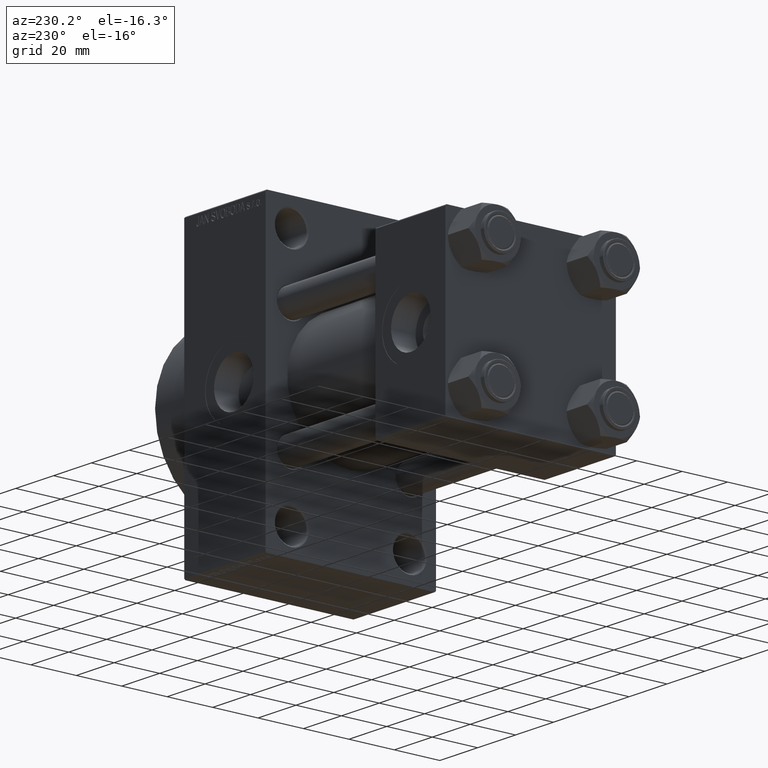
[diagram: clean part render]
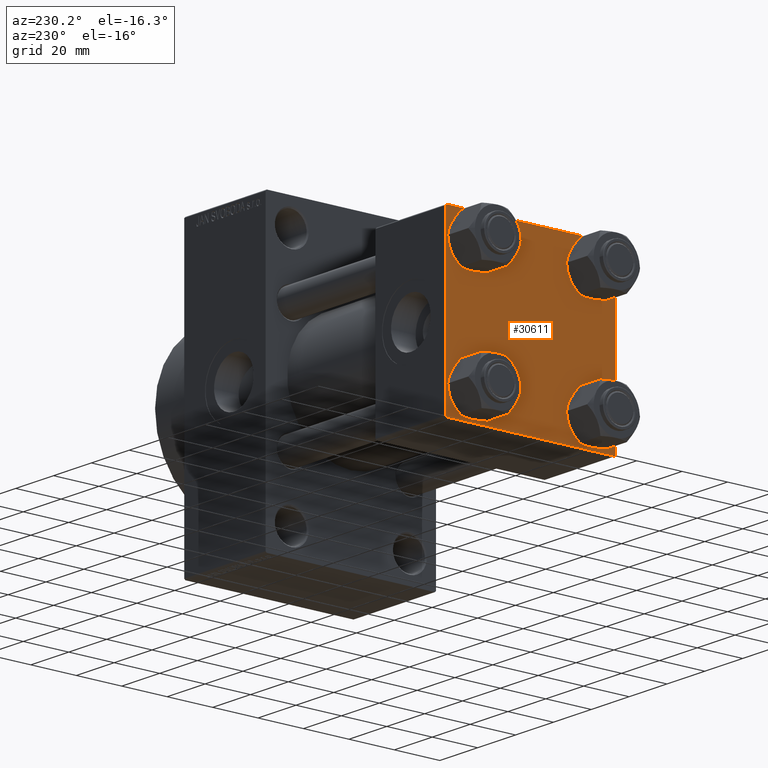
[diagram: same view with one face highlighted and labeled with its STEP entity id]
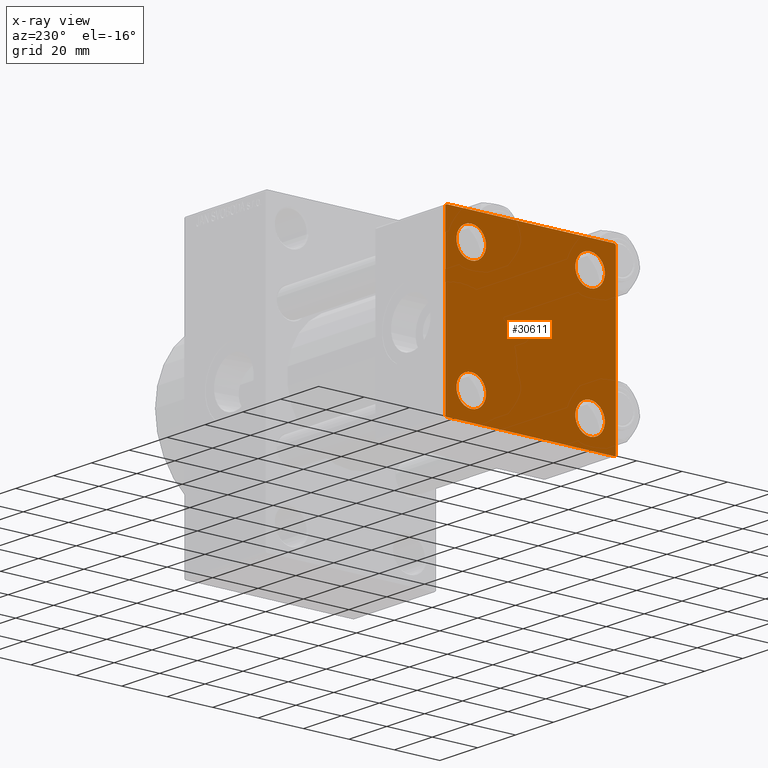
[diagram: x-ray of the same camera — body ghosted, the highlighted face saturated]
A machine part, auxiliary view. The second image highlights one B-rep face of the part: STEP entity #30611.
The next image is the same camera in x-ray: the body ghosted, the highlighted face saturated — about 0% of this face is hidden behind the body in this view.
In plain terms, the highlighted planar face has unit normal (-1, 0, 0).
Its self-contained STEP definition (entity closure, byte-faithful):
#164 = ORIENTED_EDGE ( 'NONE', *, *, #23043, .F. ) ;
#266 = CARTESIAN_POINT ( 'NONE',  ( 0.000000000000000000, 0.000000000000000000, 0.000000000000000000 ) ) ;
#280 = VERTEX_POINT ( 'NONE', #4745 ) ;
#380 = CIRCLE ( 'NONE', #32928, 6.500000000000015987 ) ;
#445 = EDGE_CURVE ( 'NONE', #45402, #32034, #45123, .T. ) ;
#651 = EDGE_CURVE ( 'NONE', #19313, #18272, #25480, .T. ) ;
#718 = CARTESIAN_POINT ( 'NONE',  ( 0.000000000000000000, -37.24999999999975842, -37.25000000000027001 ) ) ;
#1089 = AXIS2_PLACEMENT_3D ( 'NONE', #13650, #21584, #28790 ) ;
#1603 = EDGE_LOOP ( 'NONE', ( #14494, #9379 ) ) ;
#2629 = ORIENTED_EDGE ( 'NONE', *, *, #27006, .T. ) ;
#2839 = CARTESIAN_POINT ( 'NONE',  ( 0.000000000000000000, 26.14999999999999858, 32.65000000000002700 ) ) ;
#3010 = VERTEX_POINT ( 'NONE', #30401 ) ;
#4671 = LINE ( 'NONE', #31243, #33679 ) ;
#4745 = CARTESIAN_POINT ( 'NONE',  ( 0.000000000000000000, -26.14999999999999147, -19.64999999999999503 ) ) ;
#4806 = ORIENTED_EDGE ( 'NONE', *, *, #18649, .F. ) ;
#5316 = EDGE_LOOP ( 'NONE', ( #17723, #12938 ) ) ;
#5502 = CARTESIAN_POINT ( 'NONE',  ( 0.000000000000000000, 36.99999999999997868, -37.50000000000000000 ) ) ;
#6430 = DIRECTION ( 'NONE',  ( -0.000000000000000000, 0.000000000000000000, 1.000000000000000000 ) ) ;
#6792 = VECTOR ( 'NONE', #23346, 1000.000000000000000 ) ;
#7272 = LINE ( 'NONE', #29633, #43331 ) ;
#7465 = CARTESIAN_POINT ( 'NONE',  ( 0.000000000000000000, 26.14999999999999858, -26.15000000000000213 ) ) ;
#7577 = VERTEX_POINT ( 'NONE', #22704 ) ;
#9268 = VERTEX_POINT ( 'NONE', #33049 ) ;
#9379 = ORIENTED_EDGE ( 'NONE', *, *, #13711, .T. ) ;
#9625 = ORIENTED_EDGE ( 'NONE', *, *, #651, .T. ) ;
#9881 = CIRCLE ( 'NONE', #39245, 6.500000000000015987 ) ;
#10325 = VERTEX_POINT ( 'NONE', #30315 ) ;
#10361 = DIRECTION ( 'NONE',  ( 0.000000000000000000, 0.000000000000000000, -1.000000000000000000 ) ) ;
#10403 = AXIS2_PLACEMENT_3D ( 'NONE', #33815, #22408, #31093 ) ;
#10669 = CIRCLE ( 'NONE', #15426, 6.500000000000023093 ) ;
#10781 = DIRECTION ( 'NONE',  ( 0.000000000000000000, 0.000000000000000000, 1.000000000000000000 ) ) ;
#11255 = DIRECTION ( 'NONE',  ( -0.000000000000000000, -0.7071067811865474617, -0.7071067811865474617 ) ) ;
#11263 = CIRCLE ( 'NONE', #19191, 6.500000000000023093 ) ;
#11276 = DIRECTION ( 'NONE',  ( 1.000000000000000000, -0.000000000000000000, 0.000000000000000000 ) ) ;
#11481 = FACE_BOUND ( 'NONE', #1603, .T. ) ;
#11683 = VECTOR ( 'NONE', #10361, 1000.000000000000000 ) ;
#11962 = DIRECTION ( 'NONE',  ( -0.000000000000000000, 0.7071067811865474617, 0.7071067811865474617 ) ) ;
#12335 = VECTOR ( 'NONE', #38794, 1000.000000000000000 ) ;
#12924 = EDGE_CURVE ( 'NONE', #3010, #36391, #15658, .T. ) ;
#12938 = ORIENTED_EDGE ( 'NONE', *, *, #19179, .T. ) ;
#13233 = AXIS2_PLACEMENT_3D ( 'NONE', #44306, #44786, #10781 ) ;
#13594 = VERTEX_POINT ( 'NONE', #42335 ) ;
#13650 = CARTESIAN_POINT ( 'NONE',  ( 0.000000000000000000, -26.14999999999999147, -26.15000000000000924 ) ) ;
#13711 = EDGE_CURVE ( 'NONE', #27453, #17594, #11263, .T. ) ;
#14010 = CARTESIAN_POINT ( 'NONE',  ( 0.000000000000000000, 37.49999999999999289, -36.99999999999998579 ) ) ;
#14494 = ORIENTED_EDGE ( 'NONE', *, *, #38718, .T. ) ;
#14817 = EDGE_CURVE ( 'NONE', #7577, #9268, #42123, .T. ) ;
#15170 = DIRECTION ( 'NONE',  ( 0.000000000000000000, 0.000000000000000000, 1.000000000000000000 ) ) ;
#15198 = VERTEX_POINT ( 'NONE', #28733 ) ;
#15426 = AXIS2_PLACEMENT_3D ( 'NONE', #25944, #11276, #33611 ) ;
#15544 = CARTESIAN_POINT ( 'NONE',  ( 0.000000000000000000, 37.49999999999999289, -37.50000000000000000 ) ) ;
#15658 = LINE ( 'NONE', #23127, #40611 ) ;
#16447 = VECTOR ( 'NONE', #22513, 1000.000000000000000 ) ;
#16570 = EDGE_LOOP ( 'NONE', ( #23280, #44437 ) ) ;
#17556 = LINE ( 'NONE', #47387, #11683 ) ;
#17577 = EDGE_CURVE ( 'NONE', #9268, #7577, #10669, .T. ) ;
#17594 = VERTEX_POINT ( 'NONE', #2839 ) ;
#17723 = ORIENTED_EDGE ( 'NONE', *, *, #44395, .T. ) ;
#18272 = VERTEX_POINT ( 'NONE', #23878 ) ;
#18363 = CARTESIAN_POINT ( 'NONE',  ( 0.000000000000000000, -37.00000000000000711, 37.49999999999999289 ) ) ;
#18613 = EDGE_LOOP ( 'NONE', ( #2629, #19785, #30968, #33003, #164, #40591, #4806, #9625 ) ) ;
#18649 = EDGE_CURVE ( 'NONE', #19313, #36391, #4671, .T. ) ;
#18748 = CIRCLE ( 'NONE', #13233, 6.500000000000015987 ) ;
#18824 = DIRECTION ( 'NONE',  ( 0.000000000000000000, 0.000000000000000000, 1.000000000000000000 ) ) ;
#19179 = EDGE_CURVE ( 'NONE', #10325, #15198, #380, .T. ) ;
#19191 = AXIS2_PLACEMENT_3D ( 'NONE', #19962, #35618, #42831 ) ;
#19313 = VERTEX_POINT ( 'NONE', #31074 ) ;
#19785 = ORIENTED_EDGE ( 'NONE', *, *, #47206, .T. ) ;
#19962 = CARTESIAN_POINT ( 'NONE',  ( 0.000000000000000000, 26.14999999999999858, 26.15000000000000213 ) ) ;
#21584 = DIRECTION ( 'NONE',  ( 1.000000000000000000, -0.000000000000000000, 0.000000000000000000 ) ) ;
#22408 = DIRECTION ( 'NONE',  ( 1.000000000000000000, -0.000000000000000000, 0.000000000000000000 ) ) ;
#22513 = DIRECTION ( 'NONE',  ( 0.000000000000000000, -1.000000000000000000, -9.251858538542972814E-17 ) ) ;
#22556 = CARTESIAN_POINT ( 'NONE',  ( 0.000000000000000000, 26.14999999999999858, 26.15000000000000213 ) ) ;
#22704 = CARTESIAN_POINT ( 'NONE',  ( 0.000000000000000000, -26.14999999999999147, 32.65000000000003411 ) ) ;
#22874 = DIRECTION ( 'NONE',  ( 1.000000000000000000, -0.000000000000000000, 0.000000000000000000 ) ) ;
#23043 = EDGE_CURVE ( 'NONE', #3010, #46706, #27869, .T. ) ;
#23127 = CARTESIAN_POINT ( 'NONE',  ( -0.000000000000000000, -37.25000000000000000, 37.25000000000000000 ) ) ;
#23184 = ORIENTED_EDGE ( 'NONE', *, *, #14817, .T. ) ;
#23280 = ORIENTED_EDGE ( 'NONE', *, *, #26324, .T. ) ;
#23346 = DIRECTION ( 'NONE',  ( 0.000000000000000000, -0.7071067811865524577, 0.7071067811865426878 ) ) ;
#23878 = CARTESIAN_POINT ( 'NONE',  ( 0.000000000000000000, 37.49999999999999289, 37.00000000000000000 ) ) ;
#25480 = LINE ( 'NONE', #33155, #43458 ) ;
#25717 = DIRECTION ( 'NONE',  ( 0.000000000000000000, 0.7071067811865474617, -0.7071067811865474617 ) ) ;
#25944 = CARTESIAN_POINT ( 'NONE',  ( 0.000000000000000000, -26.14999999999999147, 26.15000000000000924 ) ) ;
#26126 = CARTESIAN_POINT ( 'NONE',  ( 0.000000000000000000, 26.14999999999999858, -26.15000000000000213 ) ) ;
#26324 = EDGE_CURVE ( 'NONE', #280, #13594, #18748, .T. ) ;
#26340 = VERTEX_POINT ( 'NONE', #14010 ) ;
#26632 = FACE_OUTER_BOUND ( 'NONE', #18613, .T. ) ;
#27006 = EDGE_CURVE ( 'NONE', #18272, #26340, #17556, .T. ) ;
#27453 = VERTEX_POINT ( 'NONE', #49200 ) ;
#27869 = LINE ( 'NONE', #35556, #12335 ) ;
#28733 = CARTESIAN_POINT ( 'NONE',  ( 0.000000000000000000, 26.14999999999999858, -19.64999999999998792 ) ) ;
#28790 = DIRECTION ( 'NONE',  ( 0.000000000000000000, 0.000000000000000000, 1.000000000000000000 ) ) ;
#29399 = CIRCLE ( 'NONE', #41277, 6.500000000000023093 ) ;
#29633 = CARTESIAN_POINT ( 'NONE',  ( 0.000000000000000000, 37.24999999999998579, -37.24999999999998579 ) ) ;
#30315 = CARTESIAN_POINT ( 'NONE',  ( 0.000000000000000000, 26.14999999999999858, -32.65000000000001990 ) ) ;
#30386 = EDGE_LOOP ( 'NONE', ( #23184, #36495 ) ) ;
#30401 = CARTESIAN_POINT ( 'NONE',  ( 0.000000000000000000, -37.50000000000000711, 36.99999999999999289 ) ) ;
#30611 = ADVANCED_FACE ( 'NONE', ( #42782, #35313, #45504, #11481, #26632 ), #34308, .T. ) ;
#30968 = ORIENTED_EDGE ( 'NONE', *, *, #445, .T. ) ;
#31074 = CARTESIAN_POINT ( 'NONE',  ( 0.000000000000000000, 36.99999999999999289, 37.50000000000000000 ) ) ;
#31093 = DIRECTION ( 'NONE',  ( 0.000000000000000000, 0.000000000000000000, 1.000000000000000000 ) ) ;
#31243 = CARTESIAN_POINT ( 'NONE',  ( 0.000000000000000000, 37.49999999999999289, 37.50000000000000000 ) ) ;
#32034 = VERTEX_POINT ( 'NONE', #43366 ) ;
#32928 = AXIS2_PLACEMENT_3D ( 'NONE', #26126, #22874, #15170 ) ;
#33003 = ORIENTED_EDGE ( 'NONE', *, *, #46328, .T. ) ;
#33049 = CARTESIAN_POINT ( 'NONE',  ( 0.000000000000000000, -26.14999999999999147, 19.64999999999999147 ) ) ;
#33155 = CARTESIAN_POINT ( 'NONE',  ( 0.000000000000000000, 37.24999999999999289, 37.24999999999999289 ) ) ;
#33611 = DIRECTION ( 'NONE',  ( 0.000000000000000000, 0.000000000000000000, 1.000000000000000000 ) ) ;
#33679 = VECTOR ( 'NONE', #46404, 1000.000000000000000 ) ;
#33815 = CARTESIAN_POINT ( 'NONE',  ( 0.000000000000000000, -26.14999999999999147, 26.15000000000000924 ) ) ;
#34308 = PLANE ( 'NONE',  #37177 ) ;
#34949 = CARTESIAN_POINT ( 'NONE',  ( 0.000000000000000000, -37.50000000000000000, -37.00000000000003553 ) ) ;
#35313 = FACE_BOUND ( 'NONE', #16570, .T. ) ;
#35556 = CARTESIAN_POINT ( 'NONE',  ( 0.000000000000000000, -37.50000000000000711, 37.49999999999999289 ) ) ;
#35618 = DIRECTION ( 'NONE',  ( 1.000000000000000000, -0.000000000000000000, 0.000000000000000000 ) ) ;
#36391 = VERTEX_POINT ( 'NONE', #18363 ) ;
#36491 = DIRECTION ( 'NONE',  ( -1.000000000000000000, 0.000000000000000000, -0.000000000000000000 ) ) ;
#36495 = ORIENTED_EDGE ( 'NONE', *, *, #17577, .T. ) ;
#37177 = AXIS2_PLACEMENT_3D ( 'NONE', #266, #36491, #6430 ) ;
#38367 = CIRCLE ( 'NONE', #1089, 6.500000000000015987 ) ;
#38718 = EDGE_CURVE ( 'NONE', #17594, #27453, #29399, .T. ) ;
#38794 = DIRECTION ( 'NONE',  ( 0.000000000000000000, 9.251858538542971581E-17, -1.000000000000000000 ) ) ;
#39245 = AXIS2_PLACEMENT_3D ( 'NONE', #7465, #41270, #41033 ) ;
#40591 = ORIENTED_EDGE ( 'NONE', *, *, #12924, .T. ) ;
#40611 = VECTOR ( 'NONE', #11962, 1000.000000000000114 ) ;
#41033 = DIRECTION ( 'NONE',  ( 0.000000000000000000, 0.000000000000000000, 1.000000000000000000 ) ) ;
#41270 = DIRECTION ( 'NONE',  ( 1.000000000000000000, -0.000000000000000000, 0.000000000000000000 ) ) ;
#41277 = AXIS2_PLACEMENT_3D ( 'NONE', #22556, #48672, #18824 ) ;
#42123 = CIRCLE ( 'NONE', #10403, 6.500000000000023093 ) ;
#42335 = CARTESIAN_POINT ( 'NONE',  ( 0.000000000000000000, -26.14999999999999147, -32.65000000000002700 ) ) ;
#42782 = FACE_BOUND ( 'NONE', #30386, .T. ) ;
#42831 = DIRECTION ( 'NONE',  ( 0.000000000000000000, 0.000000000000000000, 1.000000000000000000 ) ) ;
#42870 = EDGE_CURVE ( 'NONE', #13594, #280, #38367, .T. ) ;
#43331 = VECTOR ( 'NONE', #11255, 1000.000000000000114 ) ;
#43366 = CARTESIAN_POINT ( 'NONE',  ( 0.000000000000000000, -37.00000000000002132, -37.50000000000000711 ) ) ;
#43458 = VECTOR ( 'NONE', #25717, 1000.000000000000114 ) ;
#44306 = CARTESIAN_POINT ( 'NONE',  ( 0.000000000000000000, -26.14999999999999147, -26.15000000000000924 ) ) ;
#44395 = EDGE_CURVE ( 'NONE', #15198, #10325, #9881, .T. ) ;
#44437 = ORIENTED_EDGE ( 'NONE', *, *, #42870, .T. ) ;
#44786 = DIRECTION ( 'NONE',  ( 1.000000000000000000, -0.000000000000000000, 0.000000000000000000 ) ) ;
#45123 = LINE ( 'NONE', #15544, #16447 ) ;
#45402 = VERTEX_POINT ( 'NONE', #5502 ) ;
#45504 = FACE_BOUND ( 'NONE', #5316, .T. ) ;
#45702 = LINE ( 'NONE', #718, #6792 ) ;
#46328 = EDGE_CURVE ( 'NONE', #32034, #46706, #45702, .T. ) ;
#46404 = DIRECTION ( 'NONE',  ( 0.000000000000000000, -1.000000000000000000, -9.251858538542971581E-17 ) ) ;
#46706 = VERTEX_POINT ( 'NONE', #34949 ) ;
#47206 = EDGE_CURVE ( 'NONE', #26340, #45402, #7272, .T. ) ;
#47387 = CARTESIAN_POINT ( 'NONE',  ( 0.000000000000000000, 37.49999999999999289, 37.50000000000000000 ) ) ;
#48672 = DIRECTION ( 'NONE',  ( 1.000000000000000000, -0.000000000000000000, 0.000000000000000000 ) ) ;
#49200 = CARTESIAN_POINT ( 'NONE',  ( 0.000000000000000000, 26.14999999999999858, 19.64999999999998437 ) ) ;